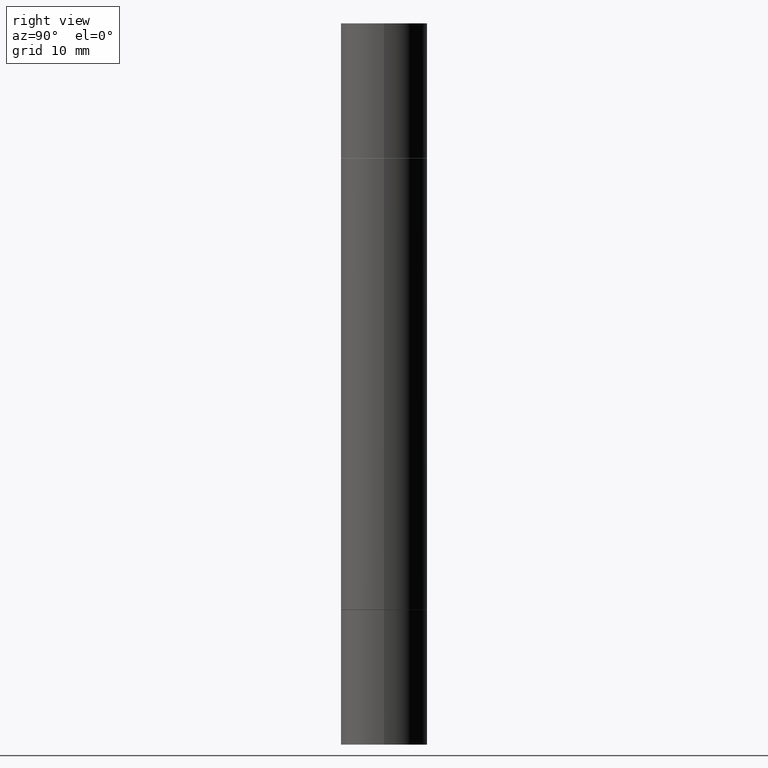
[diagram: clean part render]
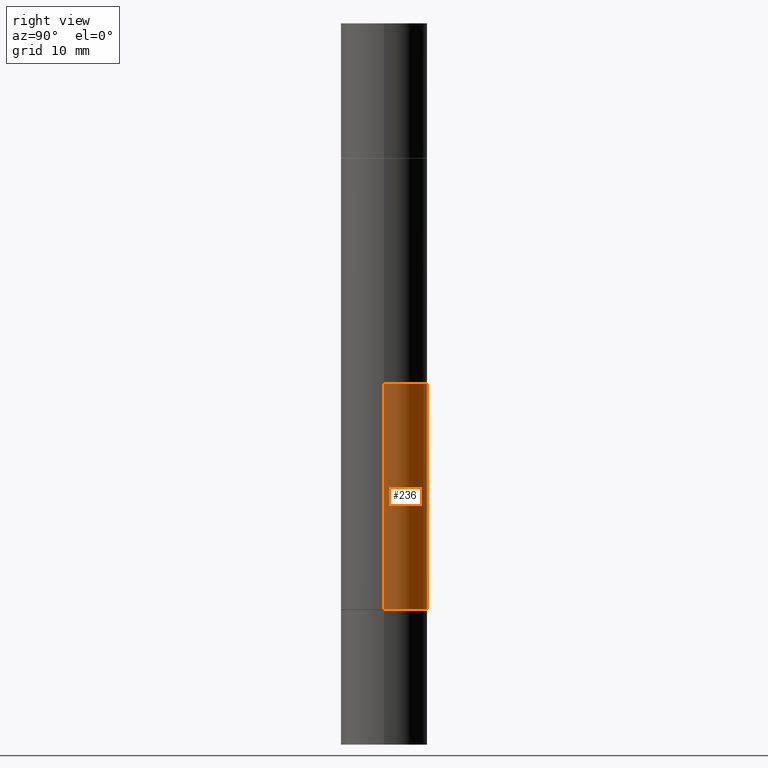
[diagram: same view with one face highlighted and labeled with its STEP entity id]
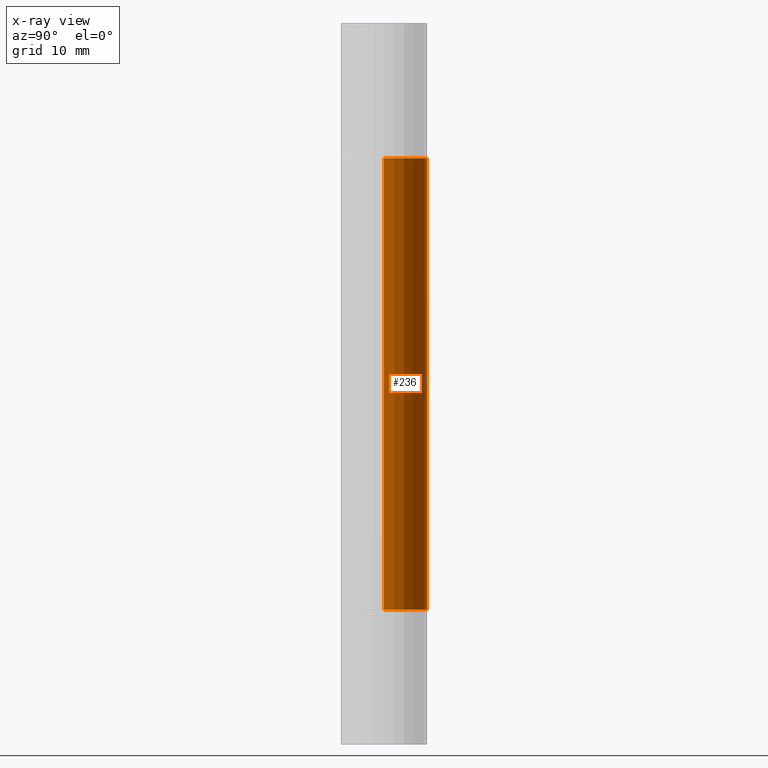
[diagram: x-ray of the same camera — body ghosted, the highlighted face saturated]
A machine part, right view. The second image highlights one B-rep face of the part: STEP entity #236.
The next image is the same camera in x-ray: the body ghosted, the highlighted face saturated — about 0% of this face is hidden behind the body in this view.
In plain terms, the highlighted cylindrical surface (partial cylindrical patch) has radius 4.4996 mm, axis along (-0, -0, -1).
Its self-contained STEP definition (entity closure, byte-faithful):
#20 = DIRECTION ( 'NONE',  ( -2.445468806185136877E-29, -3.492890411551753071E-15, -1.000000000000000000 ) ) ;
#22 = CARTESIAN_POINT ( 'NONE',  ( 0.000000000000000000, -1.031172645228302408E-14, -2.952799999999998981 ) ) ;
#24 = FACE_OUTER_BOUND ( 'NONE', #391, .T. ) ;
#27 = DIRECTION ( 'NONE',  ( 2.445468806185136597E-29, 3.492890411551752677E-15, 1.000000000000000000 ) ) ;
#52 = LINE ( 'NONE', #416, #170 ) ;
#65 = CIRCLE ( 'NONE', #260, 0.1771500000000000019 ) ;
#78 = ORIENTED_EDGE ( 'NONE', *, *, #167, .T. ) ;
#116 = ORIENTED_EDGE ( 'NONE', *, *, #295, .F. ) ;
#123 = DIRECTION ( 'NONE',  ( 1.000000000000000000, -6.982962677686268288E-15, 0.000000000000000000 ) ) ;
#130 = LINE ( 'NONE', #503, #290 ) ;
#163 = DIRECTION ( 'NONE',  ( -2.445468806185136877E-29, -3.492890411551753071E-15, -1.000000000000000000 ) ) ;
#167 = EDGE_CURVE ( 'NONE', #442, #240, #52, .T. ) ;
#170 = VECTOR ( 'NONE', #163, 39.37007874015748143 ) ;
#174 = ORIENTED_EDGE ( 'NONE', *, *, #322, .T. ) ;
#236 = ADVANCED_FACE ( 'NONE', ( #24 ), #644, .T. ) ;
#240 = VERTEX_POINT ( 'NONE', #658 ) ;
#241 = DIRECTION ( 'NONE',  ( 1.000000000000000000, -6.982962677686266711E-15, 0.000000000000000000 ) ) ;
#260 = AXIS2_PLACEMENT_3D ( 'NONE', #346, #27, #488 ) ;
#290 = VECTOR ( 'NONE', #20, 39.37007874015748143 ) ;
#292 = CARTESIAN_POINT ( 'NONE',  ( 5.870592416128037625E-29, -8.381650102026854256E-15, -2.400599999999999401 ) ) ;
#295 = EDGE_CURVE ( 'NONE', #649, #389, #130, .T. ) ;
#308 = AXIS2_PLACEMENT_3D ( 'NONE', #292, #487, #241 ) ;
#322 = EDGE_CURVE ( 'NONE', #240, #389, #519, .T. ) ;
#346 = CARTESIAN_POINT ( 'NONE',  ( 5.870592416128037625E-29, -1.926693730311889446E-15, -0.5521999999999996911 ) ) ;
#386 = DIRECTION ( 'NONE',  ( -2.445468806185136597E-29, -3.492890411551752677E-15, -1.000000000000000000 ) ) ;
#389 = VERTEX_POINT ( 'NONE', #564 ) ;
#391 = EDGE_LOOP ( 'NONE', ( #116, #447, #78, #174 ) ) ;
#416 = CARTESIAN_POINT ( 'NONE',  ( 0.1771499999999998354, -1.154875829063514490E-14, -2.952799999999998981 ) ) ;
#442 = VERTEX_POINT ( 'NONE', #625 ) ;
#447 = ORIENTED_EDGE ( 'NONE', *, *, #624, .F. ) ;
#479 = AXIS2_PLACEMENT_3D ( 'NONE', #22, #386, #123 ) ;
#487 = DIRECTION ( 'NONE',  ( -2.445468806185136597E-29, 3.491481338843145583E-15, 1.000000000000000000 ) ) ;
#488 = DIRECTION ( 'NONE',  ( 1.000000000000000000, -6.982962677686266711E-15, 0.000000000000000000 ) ) ;
#503 = CARTESIAN_POINT ( 'NONE',  ( -0.1771499999999998354, -9.096389231977799348E-15, -2.952799999999998981 ) ) ;
#519 = CIRCLE ( 'NONE', #308, 0.1771500000000000019 ) ;
#564 = CARTESIAN_POINT ( 'NONE',  ( -0.1771500000000000019, -3.939485828362789011E-15, -2.400599999999999401 ) ) ;
#602 = CARTESIAN_POINT ( 'NONE',  ( -0.1771500000000000019, -7.113565100066610661E-16, -0.5521999999999996911 ) ) ;
#624 = EDGE_CURVE ( 'NONE', #442, #649, #65, .T. ) ;
#625 = CARTESIAN_POINT ( 'NONE',  ( 0.1771500000000000019, -3.163725568664010262E-15, -0.5521999999999996911 ) ) ;
#644 = CYLINDRICAL_SURFACE ( 'NONE', #479, 0.1771499999999998354 ) ;
#649 = VERTEX_POINT ( 'NONE', #602 ) ;
#658 = CARTESIAN_POINT ( 'NONE',  ( 0.1771500000000000019, -9.618681940378976650E-15, -2.400599999999999401 ) ) ;